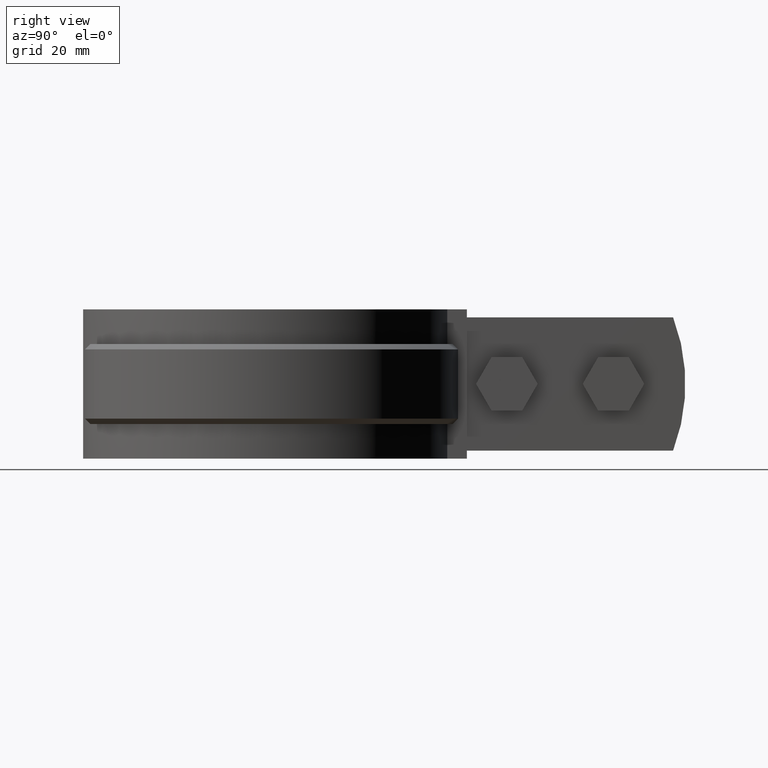
[diagram: clean part render]
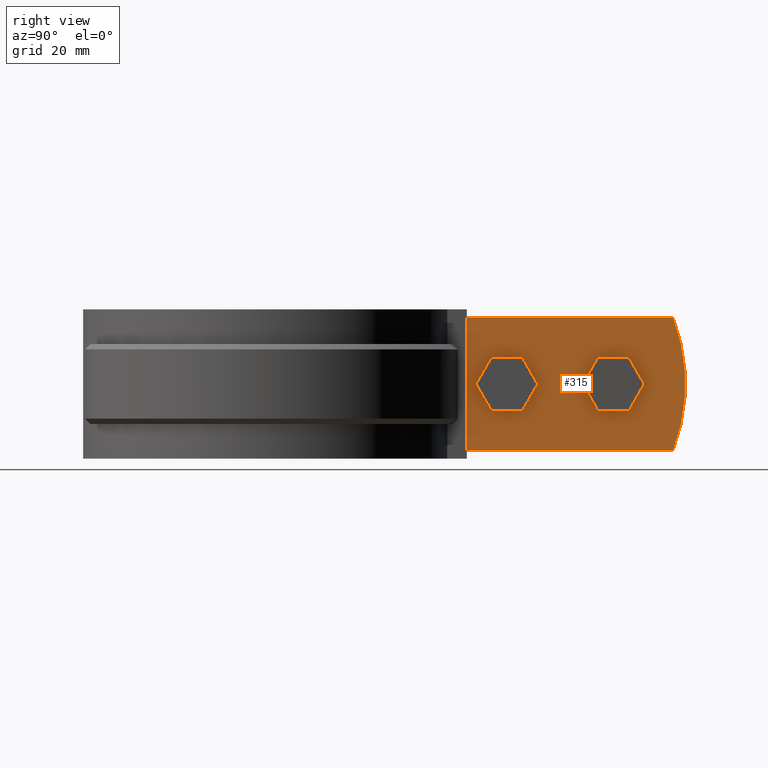
[diagram: same view with one face highlighted and labeled with its STEP entity id]
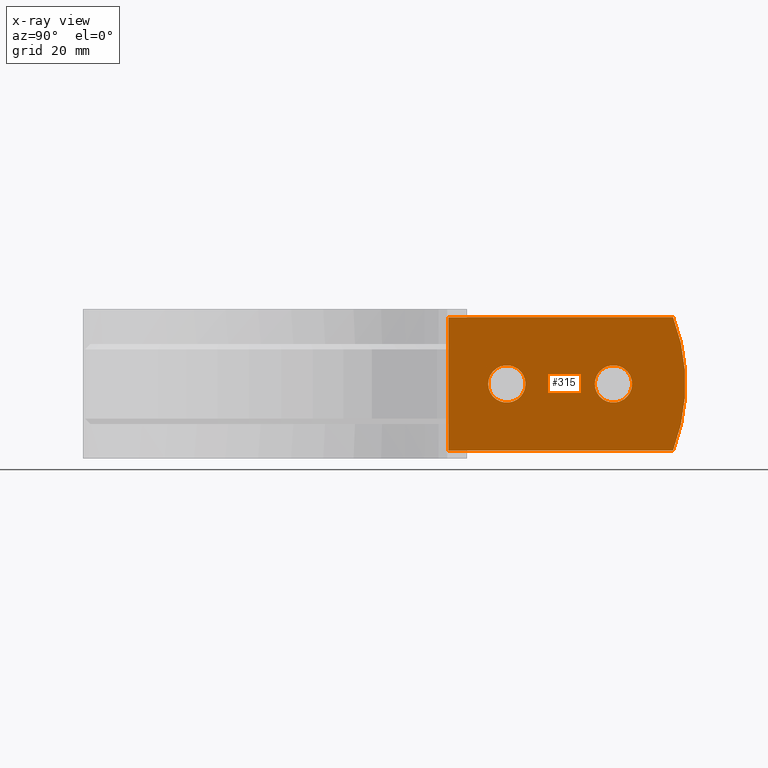
[diagram: x-ray of the same camera — body ghosted, the highlighted face saturated]
A machine part, right view. The second image highlights one B-rep face of the part: STEP entity #315.
The next image is the same camera in x-ray: the body ghosted, the highlighted face saturated — about 0% of this face is hidden behind the body in this view.
In plain terms, the highlighted planar face has unit normal (-1, 0, 0).
Its self-contained STEP definition (entity closure, byte-faithful):
#315 = ADVANCED_FACE( '', ( #518, #519, #520 ), #521, .F. );
#518 = FACE_BOUND( '', #958, .T. );
#519 = FACE_OUTER_BOUND( '', #959, .T. );
#520 = FACE_BOUND( '', #960, .T. );
#521 = PLANE( '', #961 );
#958 = EDGE_LOOP( '', ( #1918 ) );
#959 = EDGE_LOOP( '', ( #1919, #1920, #1921, #1922, #1923, #1924 ) );
#960 = EDGE_LOOP( '', ( #1925 ) );
#961 = AXIS2_PLACEMENT_3D( '', #1926, #1927, #1928 );
#1918 = ORIENTED_EDGE( '', *, *, #4428, .F. );
#1919 = ORIENTED_EDGE( '', *, *, #4429, .F. );
#1920 = ORIENTED_EDGE( '', *, *, #4430, .T. );
#1921 = ORIENTED_EDGE( '', *, *, #4431, .T. );
#1922 = ORIENTED_EDGE( '', *, *, #4432, .F. );
#1923 = ORIENTED_EDGE( '', *, *, #4433, .F. );
#1924 = ORIENTED_EDGE( '', *, *, #4434, .T. );
#1925 = ORIENTED_EDGE( '', *, *, #4435, .F. );
#1926 = CARTESIAN_POINT( '', ( 5.10000000000000, 34.1357949958690, 0.000000000000000 ) );
#1927 = DIRECTION( '', ( -1.00000000000000, 6.12303176911189E-017, 0.000000000000000 ) );
#1928 = DIRECTION( '', ( 6.12303176911189E-017, 1.00000000000000, 0.000000000000000 ) );
#4428 = EDGE_CURVE( '', #4946, #4946, #4947, .F. );
#4429 = EDGE_CURVE( '', #4948, #4949, #4950, .T. );
#4430 = EDGE_CURVE( '', #4948, #4951, #4952, .T. );
#4431 = EDGE_CURVE( '', #4951, #4953, #4954, .T. );
#4432 = EDGE_CURVE( '', #4955, #4953, #4956, .T. );
#4433 = EDGE_CURVE( '', #4957, #4955, #4958, .T. );
#4434 = EDGE_CURVE( '', #4957, #4949, #4959, .T. );
#4435 = EDGE_CURVE( '', #4960, #4960, #4961, .F. );
#4946 = VERTEX_POINT( '', #5810 );
#4947 = CIRCLE( '', #5811, 3.50000000000000 );
#4948 = VERTEX_POINT( '', #5812 );
#4949 = VERTEX_POINT( '', #5813 );
#4950 = B_SPLINE_CURVE_WITH_KNOTS( '', 3, ( #5814, #5815, #5816, #5817 ), .UNSPECIFIED., .F., .F., ( 4, 4 ), ( 6.93889390390723E-018, 0.00135941227571862 ), .UNSPECIFIED. );
#4951 = VERTEX_POINT( '', #5818 );
#4952 = LINE( '', #5819, #5820 );
#4953 = VERTEX_POINT( '', #5821 );
#4954 = LINE( '', #5822, #5823 );
#4955 = VERTEX_POINT( '', #5824 );
#4956 = CIRCLE( '', #5825, 35.0000000000000 );
#4957 = VERTEX_POINT( '', #5826 );
#4958 = LINE( '', #5827, #5828 );
#4959 = LINE( '', #5829, #5830 );
#4960 = VERTEX_POINT( '', #5831 );
#4961 = CIRCLE( '', #5832, 3.50000000000000 );
#5810 = CARTESIAN_POINT( '', ( 5.10000000000001, 61.6315111874220, -12.5000000000000 ) );
#5811 = AXIS2_PLACEMENT_3D( '', #8962, #8963, #8964 );
#5812 = CARTESIAN_POINT( '', ( 5.10000000000000, 34.1357949958690, -13.1797061378594 ) );
#5813 = CARTESIAN_POINT( '', ( 5.10000000000000, 34.1357949958690, -11.8202938621407 ) );
#5814 = CARTESIAN_POINT( '', ( 5.10000000000000, 34.1357949958690, -13.1797061378594 ) );
#5815 = CARTESIAN_POINT( '', ( 5.10000000000000, 34.1832927153295, -12.7265687126198 ) );
#5816 = CARTESIAN_POINT( '', ( 5.10000000000000, 34.1832927153295, -12.2734312873802 ) );
#5817 = CARTESIAN_POINT( '', ( 5.10000000000000, 34.1357949958691, -11.8202938621407 ) );
#5818 = CARTESIAN_POINT( '', ( 5.10000000000000, 34.1357949958690, -25.0000000000000 ) );
#5819 = CARTESIAN_POINT( '', ( 5.10000000000000, 34.1357949958690, 0.000000000000000 ) );
#5820 = VECTOR( '', #8965, 1000.00000000000 );
#5821 = CARTESIAN_POINT( '', ( 5.10000000000001, 76.3232532639770, -25.0000000000000 ) );
#5822 = CARTESIAN_POINT( '', ( 5.10000000000000, 34.1357949958690, -25.0000000000000 ) );
#5823 = VECTOR( '', #8966, 1000.00000000000 );
#5824 = CARTESIAN_POINT( '', ( 5.10000000000001, 76.3232532639770, -6.66539037127038E-031 ) );
#5825 = AXIS2_PLACEMENT_3D( '', #8967, #8968, #8969 );
#5826 = CARTESIAN_POINT( '', ( 5.10000000000000, 34.1357949958690, 0.000000000000000 ) );
#5827 = CARTESIAN_POINT( '', ( 5.10000000000000, 34.1357949958690, 0.000000000000000 ) );
#5828 = VECTOR( '', #8970, 1000.00000000000 );
#5829 = CARTESIAN_POINT( '', ( 5.10000000000000, 34.1357949958690, 0.000000000000000 ) );
#5830 = VECTOR( '', #8971, 1000.00000000000 );
#5831 = CARTESIAN_POINT( '', ( 5.10000000000001, 41.6315111874220, -12.5000000000000 ) );
#5832 = AXIS2_PLACEMENT_3D( '', #8972, #8973, #8974 );
#8962 = CARTESIAN_POINT( '', ( 5.10000000000001, 65.1315111874220, -12.5000000000000 ) );
#8963 = DIRECTION( '', ( -1.00000000000000, 6.12303176911189E-017, 0.000000000000000 ) );
#8964 = DIRECTION( '', ( -6.12303176911189E-017, -1.00000000000000, 0.000000000000000 ) );
#8965 = DIRECTION( '', ( 0.000000000000000, 0.000000000000000, -1.00000000000000 ) );
#8966 = DIRECTION( '', ( 6.12303176911189E-017, 1.00000000000000, 0.000000000000000 ) );
#8967 = CARTESIAN_POINT( '', ( 5.10000000000001, 43.6315111874220, -12.5000000000000 ) );
#8968 = DIRECTION( '', ( -1.00000000000000, 6.12303176911189E-017, 0.000000000000000 ) );
#8969 = DIRECTION( '', ( -6.12303176911189E-017, -1.00000000000000, 0.000000000000000 ) );
#8970 = DIRECTION( '', ( 6.12303176911189E-017, 1.00000000000000, 0.000000000000000 ) );
#8971 = DIRECTION( '', ( 0.000000000000000, 0.000000000000000, -1.00000000000000 ) );
#8972 = CARTESIAN_POINT( '', ( 5.10000000000001, 45.1315111874220, -12.5000000000000 ) );
#8973 = DIRECTION( '', ( -1.00000000000000, 6.12303176911189E-017, 0.000000000000000 ) );
#8974 = DIRECTION( '', ( -6.12303176911189E-017, -1.00000000000000, 0.000000000000000 ) );